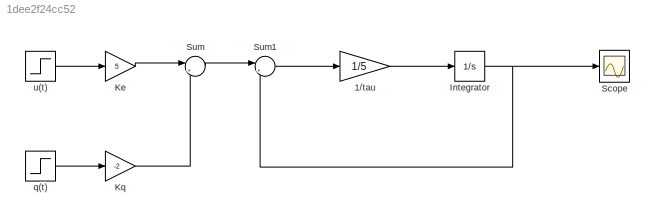
MODEL slx_1dee2f24cc52
KIND model
CONFIG AbsTol = auto
CONFIG EnableMultiTasking = off
CONFIG FixedStep = auto
CONFIG MaxStep = auto
CONFIG MinStep = auto
CONFIG RelTol = 1e-3
CONFIG SampleTimeConstraint = Unconstrained
CONFIG SolverName = VariableStepAuto
CONFIG StartTime = 0.0
CONFIG StopTime = 100
BLOCK [Gain] 1//tau
  Gain = 1/5
BLOCK [Integrator] Integrator
  Ports = [1, 1]
BLOCK [Gain] Ke
  Gain = 5
BLOCK [Gain] Kq
  Gain = -2
BLOCK [Scope] Scope
  Floating = off
  NumInputPorts = 1
  Ports = [1]
  ScopeSpecificationString = Simulink.scopes.TimeScopeBlockCfg('CurrentConfiguration', extmgr.ConfigurationSet(extmgr.Configuration('Core','General UI',true,'FigureColor',[1 1 1]),extmgr.Configuration('Core','Source UI',true),extmgr.Configuration('Sources','WiredSimulink',true,'DataLogging',true,'DataLoggingVariableName','yt'),extmgr.Configuration('Visuals','Time Domain',true,'SerializedDisplays',{struct('MinYLimReal','0','Ma...<+2011ch>
BLOCK [Sum] Sum
  Inputs = |++
  Ports = [2, 1]
BLOCK [Sum] Sum1
  Inputs = |+-
  Ports = [2, 1]
BLOCK [Step] q(t)
  SampleTime = 0
  Time = 50
BLOCK [Step] u(t)
  SampleTime = 0
  Time = 10
LINE 1//tau:1 -> Integrator:1
NET Integrator:1 -> Scope:1, Sum1:2
LINE Ke:1 -> Sum:1
LINE Kq:1 -> Sum:2
LINE Sum1:1 -> 1//tau:1
LINE Sum:1 -> Sum1:1
LINE q(t):1 -> Kq:1
LINE u(t):1 -> Ke:1
note: NET lines group one-source signal fan-out (src -> all destinations, sorted); 1:1 wires keep LINE
